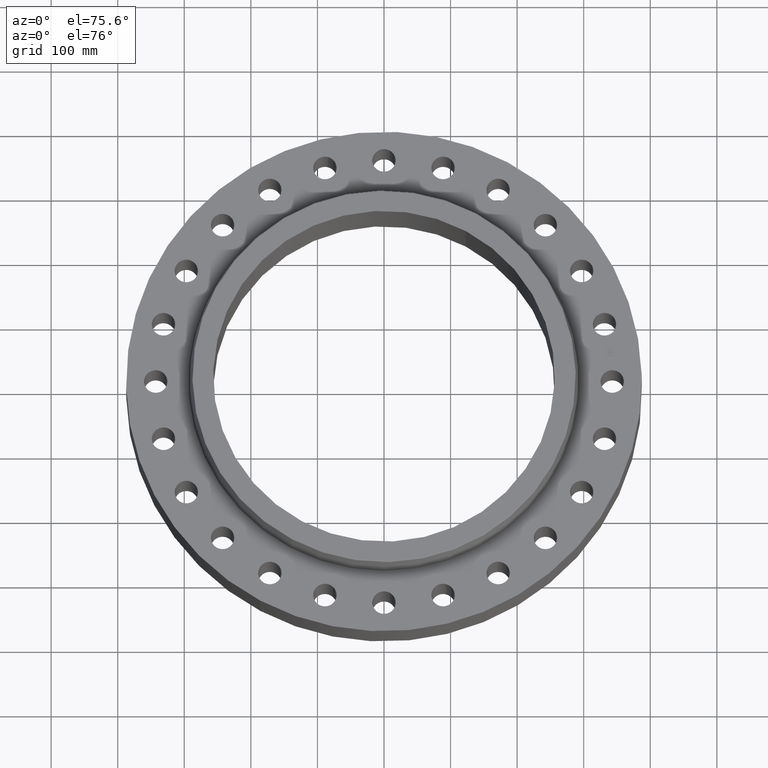
[diagram: clean part render]
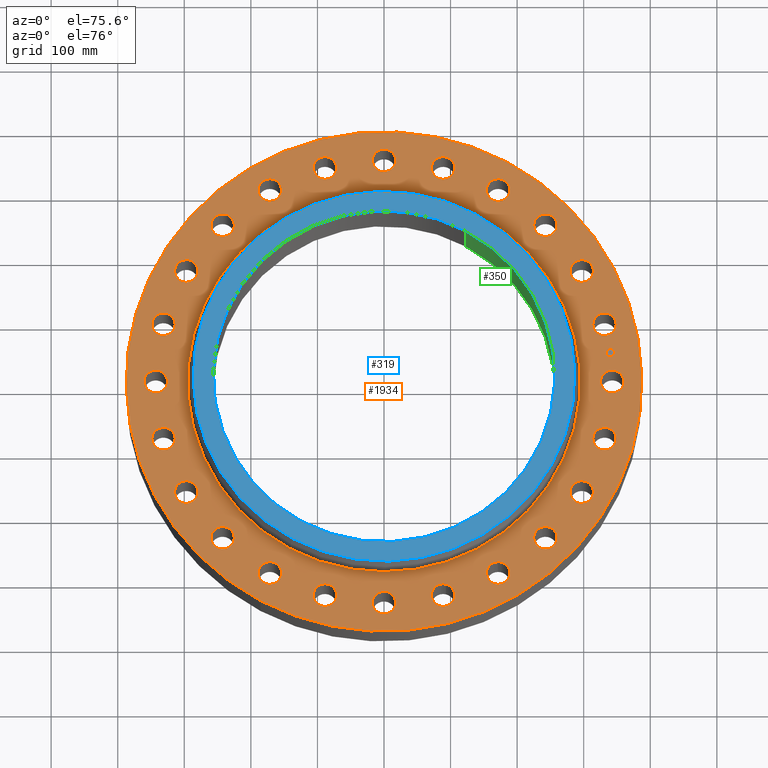
[diagram: same view with three faces highlighted in distinct colors, each labeled with its STEP entity id]
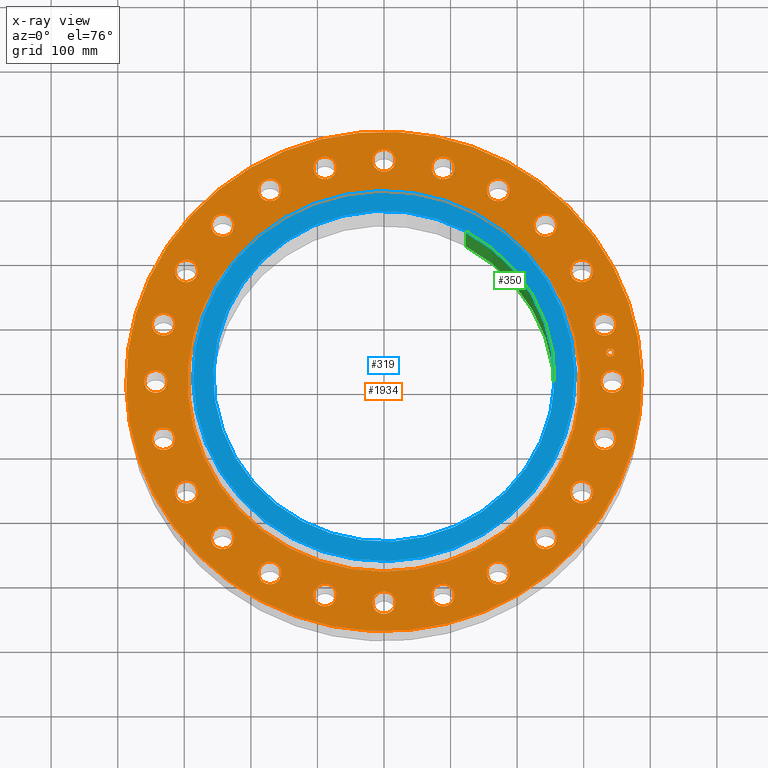
[diagram: x-ray of the same camera — body ghosted, the three highlighted faces saturated]
A machine part, auxiliary view with three faces highlighted in distinct colors.
The next image is the same camera in x-ray (body ghosted, the three faces saturated) — at least one of them is partly hidden behind the body in this view.
Their STEP definitions:

[orange] entity #1934 — the highlighted planar face has unit normal (0, 0, -1).
#65=AXIS2_PLACEMENT_3D('Circle Axis2P3D',#63,#64,$) ;
#82=AXIS2_PLACEMENT_3D('Circle Axis2P3D',#80,#81,$) ;
#115=AXIS2_PLACEMENT_3D('Circle Axis2P3D',#113,#114,$) ;
#139=AXIS2_PLACEMENT_3D('Circle Axis2P3D',#137,#138,$) ;
#156=AXIS2_PLACEMENT_3D('Circle Axis2P3D',#154,#155,$) ;
#191=AXIS2_PLACEMENT_3D('Circle Axis2P3D',#189,#190,$) ;
#839=AXIS2_PLACEMENT_3D('Circle Axis2P3D',#837,#838,$) ;
#851=AXIS2_PLACEMENT_3D('Circle Axis2P3D',#849,#850,$) ;
#882=AXIS2_PLACEMENT_3D('Circle Axis2P3D',#880,#881,$) ;
#894=AXIS2_PLACEMENT_3D('Circle Axis2P3D',#892,#893,$) ;
#925=AXIS2_PLACEMENT_3D('Circle Axis2P3D',#923,#924,$) ;
#937=AXIS2_PLACEMENT_3D('Circle Axis2P3D',#935,#936,$) ;
#968=AXIS2_PLACEMENT_3D('Circle Axis2P3D',#966,#967,$) ;
#980=AXIS2_PLACEMENT_3D('Circle Axis2P3D',#978,#979,$) ;
#1011=AXIS2_PLACEMENT_3D('Circle Axis2P3D',#1009,#1010,$) ;
#1023=AXIS2_PLACEMENT_3D('Circle Axis2P3D',#1021,#1022,$) ;
#1054=AXIS2_PLACEMENT_3D('Circle Axis2P3D',#1052,#1053,$) ;
#1066=AXIS2_PLACEMENT_3D('Circle Axis2P3D',#1064,#1065,$) ;
#1097=AXIS2_PLACEMENT_3D('Circle Axis2P3D',#1095,#1096,$) ;
#1109=AXIS2_PLACEMENT_3D('Circle Axis2P3D',#1107,#1108,$) ;
#1140=AXIS2_PLACEMENT_3D('Circle Axis2P3D',#1138,#1139,$) ;
#1152=AXIS2_PLACEMENT_3D('Circle Axis2P3D',#1150,#1151,$) ;
#1183=AXIS2_PLACEMENT_3D('Circle Axis2P3D',#1181,#1182,$) ;
#1195=AXIS2_PLACEMENT_3D('Circle Axis2P3D',#1193,#1194,$) ;
#1226=AXIS2_PLACEMENT_3D('Circle Axis2P3D',#1224,#1225,$) ;
#1238=AXIS2_PLACEMENT_3D('Circle Axis2P3D',#1236,#1237,$) ;
#1269=AXIS2_PLACEMENT_3D('Circle Axis2P3D',#1267,#1268,$) ;
#1281=AXIS2_PLACEMENT_3D('Circle Axis2P3D',#1279,#1280,$) ;
#1312=AXIS2_PLACEMENT_3D('Circle Axis2P3D',#1310,#1311,$) ;
#1324=AXIS2_PLACEMENT_3D('Circle Axis2P3D',#1322,#1323,$) ;
#1355=AXIS2_PLACEMENT_3D('Circle Axis2P3D',#1353,#1354,$) ;
#1367=AXIS2_PLACEMENT_3D('Circle Axis2P3D',#1365,#1366,$) ;
#1398=AXIS2_PLACEMENT_3D('Circle Axis2P3D',#1396,#1397,$) ;
#1410=AXIS2_PLACEMENT_3D('Circle Axis2P3D',#1408,#1409,$) ;
#1441=AXIS2_PLACEMENT_3D('Circle Axis2P3D',#1439,#1440,$) ;
#1453=AXIS2_PLACEMENT_3D('Circle Axis2P3D',#1451,#1452,$) ;
#1484=AXIS2_PLACEMENT_3D('Circle Axis2P3D',#1482,#1483,$) ;
#1496=AXIS2_PLACEMENT_3D('Circle Axis2P3D',#1494,#1495,$) ;
#1527=AXIS2_PLACEMENT_3D('Circle Axis2P3D',#1525,#1526,$) ;
#1539=AXIS2_PLACEMENT_3D('Circle Axis2P3D',#1537,#1538,$) ;
#1570=AXIS2_PLACEMENT_3D('Circle Axis2P3D',#1568,#1569,$) ;
#1582=AXIS2_PLACEMENT_3D('Circle Axis2P3D',#1580,#1581,$) ;
#1613=AXIS2_PLACEMENT_3D('Circle Axis2P3D',#1611,#1612,$) ;
#1625=AXIS2_PLACEMENT_3D('Circle Axis2P3D',#1623,#1624,$) ;
#1656=AXIS2_PLACEMENT_3D('Circle Axis2P3D',#1654,#1655,$) ;
#1668=AXIS2_PLACEMENT_3D('Circle Axis2P3D',#1666,#1667,$) ;
#1699=AXIS2_PLACEMENT_3D('Circle Axis2P3D',#1697,#1698,$) ;
#1711=AXIS2_PLACEMENT_3D('Circle Axis2P3D',#1709,#1710,$) ;
#1742=AXIS2_PLACEMENT_3D('Circle Axis2P3D',#1740,#1741,$) ;
#1754=AXIS2_PLACEMENT_3D('Circle Axis2P3D',#1752,#1753,$) ;
#1785=AXIS2_PLACEMENT_3D('Circle Axis2P3D',#1783,#1784,$) ;
#1797=AXIS2_PLACEMENT_3D('Circle Axis2P3D',#1795,#1796,$) ;
#1810=AXIS2_PLACEMENT_3D('Plane Axis2P3D',#1807,#1808,#1809) ;
#1918=AXIS2_PLACEMENT_3D('Circle Axis2P3D',#1916,#1917,$) ;
#1927=AXIS2_PLACEMENT_3D('Circle Axis2P3D',#1925,#1926,$) ;
#46=CARTESIAN_POINT('Vertex',(12.8944680323,0.330803621638,2.44000000001)) ;
#60=CARTESIAN_POINT('Vertex',(14.1055319678,-0.330803621638,2.44000000001)) ;
#63=CARTESIAN_POINT('Axis2P3D Location',(13.5000000001,0.,2.44000000001)) ;
#80=CARTESIAN_POINT('Axis2P3D Location',(13.5000000001,0.,2.44000000001)) ;
#110=CARTESIAN_POINT('Vertex',(-7.31123946374,-13.3831340689,2.44000000001)) ;
#113=CARTESIAN_POINT('Axis2P3D Location',(0.,0.,2.44000000001)) ;
#117=CARTESIAN_POINT('Vertex',(7.31123946374,13.3831340689,2.44000000001)) ;
#137=CARTESIAN_POINT('Axis2P3D Location',(0.,0.,2.44000000001)) ;
#154=CARTESIAN_POINT('Axis2P3D Location',(0.,0.,2.44000000001)) ;
#158=CARTESIAN_POINT('Vertex',(5.56629637384,10.1890371677,2.44000000001)) ;
#160=CARTESIAN_POINT('Vertex',(-5.56629637384,-10.1890371677,2.44000000001)) ;
#189=CARTESIAN_POINT('Axis2P3D Location',(0.,0.,2.44000000001)) ;
#827=CARTESIAN_POINT('Vertex',(-12.5407179662,3.01780214167,2.44000000001)) ;
#834=CARTESIAN_POINT('Vertex',(-13.5392793437,3.97031207613,2.44000000001)) ;
#837=CARTESIAN_POINT('Axis2P3D Location',(-13.039998655,3.4940571089,2.44000000001)) ;
#849=CARTESIAN_POINT('Axis2P3D Location',(-13.039998655,3.4940571089,2.44000000001)) ;
#870=CARTESIAN_POINT('Vertex',(11.3323386951,-6.16074967617,2.44000000001)) ;
#877=CARTESIAN_POINT('Vertex',(12.0503472072,-7.33925032388,2.44000000001)) ;
#880=CARTESIAN_POINT('Axis2P3D Location',(11.6913429511,-6.75000000003,2.44000000001)) ;
#892=CARTESIAN_POINT('Axis2P3D Location',(11.6913429511,-6.75000000003,2.44000000001)) ;
#913=CARTESIAN_POINT('Vertex',(-11.3323386951,6.16074967617,2.44000000001)) ;
#920=CARTESIAN_POINT('Vertex',(-12.0503472072,7.33925032388,2.44000000001)) ;
#923=CARTESIAN_POINT('Axis2P3D Location',(-11.6913429511,6.75000000003,2.44000000001)) ;
#935=CARTESIAN_POINT('Axis2P3D Location',(-11.6913429511,6.75000000003,2.44000000001)) ;
#956=CARTESIAN_POINT('Vertex',(9.35167926957,-8.88385230136,2.44000000001)) ;
#963=CARTESIAN_POINT('Vertex',(9.74020382255,-10.2080307907,2.44000000001)) ;
#966=CARTESIAN_POINT('Axis2P3D Location',(9.54594154606,-9.54594154606,2.44000000001)) ;
#978=CARTESIAN_POINT('Axis2P3D Location',(9.54594154606,-9.54594154606,2.44000000001)) ;
#999=CARTESIAN_POINT('Vertex',(-9.35167926957,8.88385230136,2.44000000001)) ;
#1006=CARTESIAN_POINT('Vertex',(-9.74020382255,10.2080307907,2.44000000001)) ;
#1009=CARTESIAN_POINT('Axis2P3D Location',(-9.54594154606,9.54594154606,2.44000000001)) ;
#1021=CARTESIAN_POINT('Axis2P3D Location',(-9.54594154606,9.54594154606,2.44000000001)) ;
#1042=CARTESIAN_POINT('Vertex',(6.73371835618,-11.0015350735,2.44000000001)) ;
#1049=CARTESIAN_POINT('Vertex',(6.76628164388,-12.3811508288,2.44000000001)) ;
#1052=CARTESIAN_POINT('Axis2P3D Location',(6.75000000003,-11.6913429511,2.44000000001)) ;
#1064=CARTESIAN_POINT('Axis2P3D Location',(6.75000000003,-11.6913429511,2.44000000001)) ;
#1085=CARTESIAN_POINT('Vertex',(-6.73371835618,11.0015350735,2.44000000001)) ;
#1092=CARTESIAN_POINT('Vertex',(-6.76628164388,12.3811508288,2.44000000001)) ;
#1095=CARTESIAN_POINT('Axis2P3D Location',(-6.75000000003,11.6913429511,2.44000000001)) ;
#1107=CARTESIAN_POINT('Axis2P3D Location',(-6.75000000003,11.6913429511,2.44000000001)) ;
#1128=CARTESIAN_POINT('Vertex',(3.65686566481,-12.3694814112,2.44000000001)) ;
#1135=CARTESIAN_POINT('Vertex',(3.33124855299,-13.7105158987,2.44000000001)) ;
#1138=CARTESIAN_POINT('Axis2P3D Location',(3.4940571089,-13.039998655,2.44000000001)) ;
#1150=CARTESIAN_POINT('Axis2P3D Location',(3.4940571089,-13.039998655,2.44000000001)) ;
#1171=CARTESIAN_POINT('Vertex',(-3.65686566481,12.3694814112,2.44000000001)) ;
#1178=CARTESIAN_POINT('Vertex',(-3.33124855299,13.7105158987,2.44000000001)) ;
#1181=CARTESIAN_POINT('Axis2P3D Location',(-3.4940571089,13.039998655,2.44000000001)) ;
#1193=CARTESIAN_POINT('Axis2P3D Location',(-3.4940571089,13.039998655,2.44000000001)) ;
#1214=CARTESIAN_POINT('Vertex',(0.330803621638,-12.8944680323,2.44000000001)) ;
#1221=CARTESIAN_POINT('Vertex',(-0.330803621638,-14.1055319678,2.44000000001)) ;
#1224=CARTESIAN_POINT('Axis2P3D Location',(-1.41129328698E-015,-13.5000000001,2.44000000001)) ;
#1236=CARTESIAN_POINT('Axis2P3D Location',(-1.41129328698E-015,-13.5000000001,2.44000000001)) ;
#1257=CARTESIAN_POINT('Vertex',(-0.330803621638,12.8944680323,2.44000000001)) ;
#1264=CARTESIAN_POINT('Vertex',(0.330803621638,14.1055319678,2.44000000001)) ;
#1267=CARTESIAN_POINT('Axis2P3D Location',(-2.47990976828E-015,13.5000000001,2.44000000001)) ;
#1279=CARTESIAN_POINT('Axis2P3D Location',(-2.47990976828E-015,13.5000000001,2.44000000001)) ;
#1300=CARTESIAN_POINT('Vertex',(-3.01780214167,-12.5407179662,2.44000000001)) ;
#1307=CARTESIAN_POINT('Vertex',(-3.97031207613,-13.5392793437,2.44000000001)) ;
#1310=CARTESIAN_POINT('Axis2P3D Location',(-3.4940571089,-13.039998655,2.44000000001)) ;
#1322=CARTESIAN_POINT('Axis2P3D Location',(-3.4940571089,-13.039998655,2.44000000001)) ;
#1343=CARTESIAN_POINT('Vertex',(3.01780214167,12.5407179662,2.44000000001)) ;
#1350=CARTESIAN_POINT('Vertex',(3.97031207613,13.5392793437,2.44000000001)) ;
#1353=CARTESIAN_POINT('Axis2P3D Location',(3.4940571089,13.039998655,2.44000000001)) ;
#1365=CARTESIAN_POINT('Axis2P3D Location',(3.4940571089,13.039998655,2.44000000001)) ;
#1386=CARTESIAN_POINT('Vertex',(-6.16074967617,-11.3323386951,2.44000000001)) ;
#1393=CARTESIAN_POINT('Vertex',(-7.33925032388,-12.0503472072,2.44000000001)) ;
#1396=CARTESIAN_POINT('Axis2P3D Location',(-6.75000000003,-11.6913429511,2.44000000001)) ;
#1408=CARTESIAN_POINT('Axis2P3D Location',(-6.75000000003,-11.6913429511,2.44000000001)) ;
#1429=CARTESIAN_POINT('Vertex',(6.16074967617,11.3323386951,2.44000000001)) ;
#1436=CARTESIAN_POINT('Vertex',(7.33925032388,12.0503472072,2.44000000001)) ;
#1439=CARTESIAN_POINT('Axis2P3D Location',(6.75000000003,11.6913429511,2.44000000001)) ;
#1451=CARTESIAN_POINT('Axis2P3D Location',(6.75000000003,11.6913429511,2.44000000001)) ;
#1472=CARTESIAN_POINT('Vertex',(-8.88385230136,-9.35167926957,2.44000000001)) ;
#1479=CARTESIAN_POINT('Vertex',(-10.2080307907,-9.74020382255,2.44000000001)) ;
#1482=CARTESIAN_POINT('Axis2P3D Location',(-9.54594154606,-9.54594154606,2.44000000001)) ;
#1494=CARTESIAN_POINT('Axis2P3D Location',(-9.54594154606,-9.54594154606,2.44000000001)) ;
#1515=CARTESIAN_POINT('Vertex',(8.88385230136,9.35167926957,2.44000000001)) ;
#1522=CARTESIAN_POINT('Vertex',(10.2080307907,9.74020382255,2.44000000001)) ;
#1525=CARTESIAN_POINT('Axis2P3D Location',(9.54594154606,9.54594154606,2.44000000001)) ;
#1537=CARTESIAN_POINT('Axis2P3D Location',(9.54594154606,9.54594154606,2.44000000001)) ;
#1558=CARTESIAN_POINT('Vertex',(-11.0015350735,-6.73371835618,2.44000000001)) ;
#1565=CARTESIAN_POINT('Vertex',(-12.3811508288,-6.76628164388,2.44000000001)) ;
#1568=CARTESIAN_POINT('Axis2P3D Location',(-11.6913429511,-6.75000000003,2.44000000001)) ;
#1580=CARTESIAN_POINT('Axis2P3D Location',(-11.6913429511,-6.75000000003,2.44000000001)) ;
#1601=CARTESIAN_POINT('Vertex',(11.0015350735,6.73371835618,2.44000000001)) ;
#1608=CARTESIAN_POINT('Vertex',(12.3811508288,6.76628164388,2.44000000001)) ;
#1611=CARTESIAN_POINT('Axis2P3D Location',(11.6913429511,6.75000000003,2.44000000001)) ;
#1623=CARTESIAN_POINT('Axis2P3D Location',(11.6913429511,6.75000000003,2.44000000001)) ;
#1644=CARTESIAN_POINT('Vertex',(-12.3694814112,-3.65686566481,2.44000000001)) ;
#1651=CARTESIAN_POINT('Vertex',(-13.7105158987,-3.33124855299,2.44000000001)) ;
#1654=CARTESIAN_POINT('Axis2P3D Location',(-13.039998655,-3.4940571089,2.44000000001)) ;
#1666=CARTESIAN_POINT('Axis2P3D Location',(-13.039998655,-3.4940571089,2.44000000001)) ;
#1687=CARTESIAN_POINT('Vertex',(12.3694814112,3.65686566481,2.44000000001)) ;
#1694=CARTESIAN_POINT('Vertex',(13.7105158987,3.33124855299,2.44000000001)) ;
#1697=CARTESIAN_POINT('Axis2P3D Location',(13.039998655,3.4940571089,2.44000000001)) ;
#1709=CARTESIAN_POINT('Axis2P3D Location',(13.039998655,3.4940571089,2.44000000001)) ;
#1730=CARTESIAN_POINT('Vertex',(-12.8944680323,-0.330803621638,2.44000000001)) ;
#1737=CARTESIAN_POINT('Vertex',(-14.1055319678,0.330803621638,2.44000000001)) ;
#1740=CARTESIAN_POINT('Axis2P3D Location',(-13.5000000001,-1.65327317886E-015,2.44000000001)) ;
#1752=CARTESIAN_POINT('Axis2P3D Location',(-13.5000000001,-1.65327317886E-015,2.44000000001)) ;
#1773=CARTESIAN_POINT('Vertex',(12.5407179662,-3.01780214167,2.44000000001)) ;
#1780=CARTESIAN_POINT('Vertex',(13.5392793437,-3.97031207613,2.44000000001)) ;
#1783=CARTESIAN_POINT('Axis2P3D Location',(13.039998655,-3.4940571089,2.44000000001)) ;
#1795=CARTESIAN_POINT('Axis2P3D Location',(13.039998655,-3.4940571089,2.44000000001)) ;
#1807=CARTESIAN_POINT('Axis2P3D Location',(0.,15.2500000001,2.44000000001)) ;
#1916=CARTESIAN_POINT('Axis2P3D Location',(13.3845056286,1.76210359498,2.44000000001)) ;
#1920=CARTESIAN_POINT('Vertex',(13.352200396,2.00748619817,2.44000000001)) ;
#1922=CARTESIAN_POINT('Vertex',(13.4168108612,1.51672099179,2.44000000001)) ;
#1925=CARTESIAN_POINT('Axis2P3D Location',(13.3845056286,1.76210359498,2.44000000001)) ;
#64=DIRECTION('Axis2P3D Direction',(0.,-0.,-0.0393700787402)) ;
#81=DIRECTION('Axis2P3D Direction',(0.,-0.,-0.0393700787402)) ;
#114=DIRECTION('Axis2P3D Direction',(0.,0.,-0.0393700787402)) ;
#138=DIRECTION('Axis2P3D Direction',(0.,0.,-0.0393700787402)) ;
#155=DIRECTION('Axis2P3D Direction',(0.,0.,-0.0393700787402)) ;
#190=DIRECTION('Axis2P3D Direction',(0.,0.,-0.0393700787402)) ;
#838=DIRECTION('Axis2P3D Direction',(0.,0.,-0.0393700787402)) ;
#850=DIRECTION('Axis2P3D Direction',(0.,0.,-0.0393700787402)) ;
#881=DIRECTION('Axis2P3D Direction',(0.,-0.,-0.0393700787402)) ;
#893=DIRECTION('Axis2P3D Direction',(0.,-0.,-0.0393700787402)) ;
#924=DIRECTION('Axis2P3D Direction',(0.,0.,-0.0393700787402)) ;
#936=DIRECTION('Axis2P3D Direction',(0.,0.,-0.0393700787402)) ;
#967=DIRECTION('Axis2P3D Direction',(0.,-0.,-0.0393700787402)) ;
#979=DIRECTION('Axis2P3D Direction',(0.,-0.,-0.0393700787402)) ;
#1010=DIRECTION('Axis2P3D Direction',(0.,0.,-0.0393700787402)) ;
#1022=DIRECTION('Axis2P3D Direction',(0.,0.,-0.0393700787402)) ;
#1053=DIRECTION('Axis2P3D Direction',(0.,-0.,-0.0393700787402)) ;
#1065=DIRECTION('Axis2P3D Direction',(0.,-0.,-0.0393700787402)) ;
#1096=DIRECTION('Axis2P3D Direction',(0.,0.,-0.0393700787402)) ;
#1108=DIRECTION('Axis2P3D Direction',(0.,0.,-0.0393700787402)) ;
#1139=DIRECTION('Axis2P3D Direction',(0.,-0.,-0.0393700787402)) ;
#1151=DIRECTION('Axis2P3D Direction',(0.,-0.,-0.0393700787402)) ;
#1182=DIRECTION('Axis2P3D Direction',(0.,0.,-0.0393700787402)) ;
#1194=DIRECTION('Axis2P3D Direction',(0.,0.,-0.0393700787402)) ;
#1225=DIRECTION('Axis2P3D Direction',(0.,-0.,-0.0393700787402)) ;
#1237=DIRECTION('Axis2P3D Direction',(0.,-0.,-0.0393700787402)) ;
#1268=DIRECTION('Axis2P3D Direction',(0.,0.,-0.0393700787402)) ;
#1280=DIRECTION('Axis2P3D Direction',(0.,0.,-0.0393700787402)) ;
#1311=DIRECTION('Axis2P3D Direction',(-0.,0.,-0.0393700787402)) ;
#1323=DIRECTION('Axis2P3D Direction',(-0.,0.,-0.0393700787402)) ;
#1354=DIRECTION('Axis2P3D Direction',(0.,0.,-0.0393700787402)) ;
#1366=DIRECTION('Axis2P3D Direction',(0.,0.,-0.0393700787402)) ;
#1397=DIRECTION('Axis2P3D Direction',(-0.,0.,-0.0393700787402)) ;
#1409=DIRECTION('Axis2P3D Direction',(-0.,0.,-0.0393700787402)) ;
#1440=DIRECTION('Axis2P3D Direction',(0.,0.,-0.0393700787402)) ;
#1452=DIRECTION('Axis2P3D Direction',(0.,0.,-0.0393700787402)) ;
#1483=DIRECTION('Axis2P3D Direction',(-0.,0.,-0.0393700787402)) ;
#1495=DIRECTION('Axis2P3D Direction',(-0.,0.,-0.0393700787402)) ;
#1526=DIRECTION('Axis2P3D Direction',(0.,0.,-0.0393700787402)) ;
#1538=DIRECTION('Axis2P3D Direction',(0.,0.,-0.0393700787402)) ;
#1569=DIRECTION('Axis2P3D Direction',(-0.,0.,-0.0393700787402)) ;
#1581=DIRECTION('Axis2P3D Direction',(-0.,0.,-0.0393700787402)) ;
#1612=DIRECTION('Axis2P3D Direction',(0.,0.,-0.0393700787402)) ;
#1624=DIRECTION('Axis2P3D Direction',(0.,0.,-0.0393700787402)) ;
#1655=DIRECTION('Axis2P3D Direction',(-0.,0.,-0.0393700787402)) ;
#1667=DIRECTION('Axis2P3D Direction',(-0.,0.,-0.0393700787402)) ;
#1698=DIRECTION('Axis2P3D Direction',(0.,0.,-0.0393700787402)) ;
#1710=DIRECTION('Axis2P3D Direction',(0.,0.,-0.0393700787402)) ;
#1741=DIRECTION('Axis2P3D Direction',(-0.,0.,-0.0393700787402)) ;
#1753=DIRECTION('Axis2P3D Direction',(-0.,0.,-0.0393700787402)) ;
#1784=DIRECTION('Axis2P3D Direction',(0.,-0.,-0.0393700787402)) ;
#1796=DIRECTION('Axis2P3D Direction',(0.,-0.,-0.0393700787402)) ;
#1808=DIRECTION('Axis2P3D Direction',(0.,0.,-0.0393700787402)) ;
#1809=DIRECTION('Axis2P3D XDirection',(0.0393700787402,0.,0.)) ;
#1917=DIRECTION('Axis2P3D Direction',(0.,0.,-0.0393700787402)) ;
#1926=DIRECTION('Axis2P3D Direction',(0.,0.,-0.0393700787402)) ;
#1813=ORIENTED_EDGE('',*,*,#141,.F.) ;
#1814=ORIENTED_EDGE('',*,*,#119,.F.) ;
#1817=ORIENTED_EDGE('',*,*,#67,.T.) ;
#1818=ORIENTED_EDGE('',*,*,#84,.T.) ;
#1821=ORIENTED_EDGE('',*,*,#193,.T.) ;
#1822=ORIENTED_EDGE('',*,*,#162,.T.) ;
#1825=ORIENTED_EDGE('',*,*,#1799,.T.) ;
#1826=ORIENTED_EDGE('',*,*,#1787,.T.) ;
#1829=ORIENTED_EDGE('',*,*,#896,.T.) ;
#1830=ORIENTED_EDGE('',*,*,#884,.T.) ;
#1833=ORIENTED_EDGE('',*,*,#982,.T.) ;
#1834=ORIENTED_EDGE('',*,*,#970,.T.) ;
#1837=ORIENTED_EDGE('',*,*,#1068,.T.) ;
#1838=ORIENTED_EDGE('',*,*,#1056,.T.) ;
#1841=ORIENTED_EDGE('',*,*,#1154,.T.) ;
#1842=ORIENTED_EDGE('',*,*,#1142,.T.) ;
#1845=ORIENTED_EDGE('',*,*,#1240,.T.) ;
#1846=ORIENTED_EDGE('',*,*,#1228,.T.) ;
#1849=ORIENTED_EDGE('',*,*,#1326,.T.) ;
#1850=ORIENTED_EDGE('',*,*,#1314,.T.) ;
#1853=ORIENTED_EDGE('',*,*,#1412,.T.) ;
#1854=ORIENTED_EDGE('',*,*,#1400,.T.) ;
#1857=ORIENTED_EDGE('',*,*,#1498,.T.) ;
#1858=ORIENTED_EDGE('',*,*,#1486,.T.) ;
#1861=ORIENTED_EDGE('',*,*,#1584,.T.) ;
#1862=ORIENTED_EDGE('',*,*,#1572,.T.) ;
#1865=ORIENTED_EDGE('',*,*,#1670,.T.) ;
#1866=ORIENTED_EDGE('',*,*,#1658,.T.) ;
#1869=ORIENTED_EDGE('',*,*,#1756,.T.) ;
#1870=ORIENTED_EDGE('',*,*,#1744,.T.) ;
#1873=ORIENTED_EDGE('',*,*,#853,.T.) ;
#1874=ORIENTED_EDGE('',*,*,#841,.T.) ;
#1877=ORIENTED_EDGE('',*,*,#939,.T.) ;
#1878=ORIENTED_EDGE('',*,*,#927,.T.) ;
#1881=ORIENTED_EDGE('',*,*,#1025,.T.) ;
#1882=ORIENTED_EDGE('',*,*,#1013,.T.) ;
#1885=ORIENTED_EDGE('',*,*,#1111,.T.) ;
#1886=ORIENTED_EDGE('',*,*,#1099,.T.) ;
#1889=ORIENTED_EDGE('',*,*,#1197,.T.) ;
#1890=ORIENTED_EDGE('',*,*,#1185,.T.) ;
#1893=ORIENTED_EDGE('',*,*,#1283,.T.) ;
#1894=ORIENTED_EDGE('',*,*,#1271,.T.) ;
#1897=ORIENTED_EDGE('',*,*,#1369,.T.) ;
#1898=ORIENTED_EDGE('',*,*,#1357,.T.) ;
#1901=ORIENTED_EDGE('',*,*,#1455,.T.) ;
#1902=ORIENTED_EDGE('',*,*,#1443,.T.) ;
#1905=ORIENTED_EDGE('',*,*,#1541,.T.) ;
#1906=ORIENTED_EDGE('',*,*,#1529,.T.) ;
#1909=ORIENTED_EDGE('',*,*,#1627,.T.) ;
#1910=ORIENTED_EDGE('',*,*,#1615,.T.) ;
#1913=ORIENTED_EDGE('',*,*,#1713,.T.) ;
#1914=ORIENTED_EDGE('',*,*,#1701,.T.) ;
#1931=ORIENTED_EDGE('',*,*,#1924,.T.) ;
#1932=ORIENTED_EDGE('',*,*,#1929,.T.) ;
#1819=FACE_BOUND('',#1816,.T.) ;
#1823=FACE_BOUND('',#1820,.T.) ;
#1827=FACE_BOUND('',#1824,.T.) ;
#1831=FACE_BOUND('',#1828,.T.) ;
#1835=FACE_BOUND('',#1832,.T.) ;
#1839=FACE_BOUND('',#1836,.T.) ;
#1843=FACE_BOUND('',#1840,.T.) ;
#1847=FACE_BOUND('',#1844,.T.) ;
#1851=FACE_BOUND('',#1848,.T.) ;
#1855=FACE_BOUND('',#1852,.T.) ;
#1859=FACE_BOUND('',#1856,.T.) ;
#1863=FACE_BOUND('',#1860,.T.) ;
#1867=FACE_BOUND('',#1864,.T.) ;
#1871=FACE_BOUND('',#1868,.T.) ;
#1875=FACE_BOUND('',#1872,.T.) ;
#1879=FACE_BOUND('',#1876,.T.) ;
#1883=FACE_BOUND('',#1880,.T.) ;
#1887=FACE_BOUND('',#1884,.T.) ;
#1891=FACE_BOUND('',#1888,.T.) ;
#1895=FACE_BOUND('',#1892,.T.) ;
#1899=FACE_BOUND('',#1896,.T.) ;
#1903=FACE_BOUND('',#1900,.T.) ;
#1907=FACE_BOUND('',#1904,.T.) ;
#1911=FACE_BOUND('',#1908,.T.) ;
#1915=FACE_BOUND('',#1912,.T.) ;
#1933=FACE_BOUND('',#1930,.T.) ;
#1934=ADVANCED_FACE('PartBody',(#1815,#1819,#1823,#1827,#1831,#1835,#1839,#1843,#1847,#1851,#1855,#1859,#1863,#1867,#1871,#1875,#1879,#1883,#1887,#1891,#1895,#1899,#1903,#1907,#1911,#1915,#1933),#1811,.F.) ;
#66=CIRCLE('generated circle',#65,0.690000000003) ;
#83=CIRCLE('generated circle',#82,0.690000000003) ;
#116=CIRCLE('generated circle',#115,15.2500000001) ;
#140=CIRCLE('generated circle',#139,15.2500000001) ;
#157=CIRCLE('generated circle',#156,11.6103459779) ;
#192=CIRCLE('generated circle',#191,11.6103459779) ;
#840=CIRCLE('generated circle',#839,0.690000000003) ;
#852=CIRCLE('generated circle',#851,0.690000000003) ;
#883=CIRCLE('generated circle',#882,0.690000000003) ;
#895=CIRCLE('generated circle',#894,0.690000000003) ;
#926=CIRCLE('generated circle',#925,0.690000000003) ;
#938=CIRCLE('generated circle',#937,0.690000000003) ;
#969=CIRCLE('generated circle',#968,0.690000000003) ;
#981=CIRCLE('generated circle',#980,0.690000000003) ;
#1012=CIRCLE('generated circle',#1011,0.690000000003) ;
#1024=CIRCLE('generated circle',#1023,0.690000000003) ;
#1055=CIRCLE('generated circle',#1054,0.690000000003) ;
#1067=CIRCLE('generated circle',#1066,0.690000000003) ;
#1098=CIRCLE('generated circle',#1097,0.690000000003) ;
#1110=CIRCLE('generated circle',#1109,0.690000000003) ;
#1141=CIRCLE('generated circle',#1140,0.690000000003) ;
#1153=CIRCLE('generated circle',#1152,0.690000000003) ;
#1184=CIRCLE('generated circle',#1183,0.690000000003) ;
#1196=CIRCLE('generated circle',#1195,0.690000000003) ;
#1227=CIRCLE('generated circle',#1226,0.690000000003) ;
#1239=CIRCLE('generated circle',#1238,0.690000000003) ;
#1270=CIRCLE('generated circle',#1269,0.690000000003) ;
#1282=CIRCLE('generated circle',#1281,0.690000000003) ;
#1313=CIRCLE('generated circle',#1312,0.690000000003) ;
#1325=CIRCLE('generated circle',#1324,0.690000000003) ;
#1356=CIRCLE('generated circle',#1355,0.690000000003) ;
#1368=CIRCLE('generated circle',#1367,0.690000000003) ;
#1399=CIRCLE('generated circle',#1398,0.690000000003) ;
#1411=CIRCLE('generated circle',#1410,0.690000000003) ;
#1442=CIRCLE('generated circle',#1441,0.690000000003) ;
#1454=CIRCLE('generated circle',#1453,0.690000000003) ;
#1485=CIRCLE('generated circle',#1484,0.690000000003) ;
#1497=CIRCLE('generated circle',#1496,0.690000000003) ;
#1528=CIRCLE('generated circle',#1527,0.690000000003) ;
#1540=CIRCLE('generated circle',#1539,0.690000000003) ;
#1571=CIRCLE('generated circle',#1570,0.690000000003) ;
#1583=CIRCLE('generated circle',#1582,0.690000000003) ;
#1614=CIRCLE('generated circle',#1613,0.690000000003) ;
#1626=CIRCLE('generated circle',#1625,0.690000000003) ;
#1657=CIRCLE('generated circle',#1656,0.690000000003) ;
#1669=CIRCLE('generated circle',#1668,0.690000000003) ;
#1700=CIRCLE('generated circle',#1699,0.690000000003) ;
#1712=CIRCLE('generated circle',#1711,0.690000000003) ;
#1743=CIRCLE('generated circle',#1742,0.690000000003) ;
#1755=CIRCLE('generated circle',#1754,0.690000000003) ;
#1786=CIRCLE('generated circle',#1785,0.690000000003) ;
#1798=CIRCLE('generated circle',#1797,0.690000000003) ;
#1919=CIRCLE('generated circle',#1918,0.247500000001) ;
#1928=CIRCLE('generated circle',#1927,0.247500000001) ;
#67=EDGE_CURVE('',#47,#61,#66,.T.) ;
#84=EDGE_CURVE('',#61,#47,#83,.T.) ;
#119=EDGE_CURVE('',#111,#118,#116,.T.) ;
#141=EDGE_CURVE('',#118,#111,#140,.T.) ;
#162=EDGE_CURVE('',#159,#161,#157,.T.) ;
#193=EDGE_CURVE('',#161,#159,#192,.T.) ;
#841=EDGE_CURVE('',#828,#835,#840,.T.) ;
#853=EDGE_CURVE('',#835,#828,#852,.T.) ;
#884=EDGE_CURVE('',#871,#878,#883,.T.) ;
#896=EDGE_CURVE('',#878,#871,#895,.T.) ;
#927=EDGE_CURVE('',#914,#921,#926,.T.) ;
#939=EDGE_CURVE('',#921,#914,#938,.T.) ;
#970=EDGE_CURVE('',#957,#964,#969,.T.) ;
#982=EDGE_CURVE('',#964,#957,#981,.T.) ;
#1013=EDGE_CURVE('',#1000,#1007,#1012,.T.) ;
#1025=EDGE_CURVE('',#1007,#1000,#1024,.T.) ;
#1056=EDGE_CURVE('',#1043,#1050,#1055,.T.) ;
#1068=EDGE_CURVE('',#1050,#1043,#1067,.T.) ;
#1099=EDGE_CURVE('',#1086,#1093,#1098,.T.) ;
#1111=EDGE_CURVE('',#1093,#1086,#1110,.T.) ;
#1142=EDGE_CURVE('',#1129,#1136,#1141,.T.) ;
#1154=EDGE_CURVE('',#1136,#1129,#1153,.T.) ;
#1185=EDGE_CURVE('',#1172,#1179,#1184,.T.) ;
#1197=EDGE_CURVE('',#1179,#1172,#1196,.T.) ;
#1228=EDGE_CURVE('',#1215,#1222,#1227,.T.) ;
#1240=EDGE_CURVE('',#1222,#1215,#1239,.T.) ;
#1271=EDGE_CURVE('',#1258,#1265,#1270,.T.) ;
#1283=EDGE_CURVE('',#1265,#1258,#1282,.T.) ;
#1314=EDGE_CURVE('',#1301,#1308,#1313,.T.) ;
#1326=EDGE_CURVE('',#1308,#1301,#1325,.T.) ;
#1357=EDGE_CURVE('',#1344,#1351,#1356,.T.) ;
#1369=EDGE_CURVE('',#1351,#1344,#1368,.T.) ;
#1400=EDGE_CURVE('',#1387,#1394,#1399,.T.) ;
#1412=EDGE_CURVE('',#1394,#1387,#1411,.T.) ;
#1443=EDGE_CURVE('',#1430,#1437,#1442,.T.) ;
#1455=EDGE_CURVE('',#1437,#1430,#1454,.T.) ;
#1486=EDGE_CURVE('',#1473,#1480,#1485,.T.) ;
#1498=EDGE_CURVE('',#1480,#1473,#1497,.T.) ;
#1529=EDGE_CURVE('',#1516,#1523,#1528,.T.) ;
#1541=EDGE_CURVE('',#1523,#1516,#1540,.T.) ;
#1572=EDGE_CURVE('',#1559,#1566,#1571,.T.) ;
#1584=EDGE_CURVE('',#1566,#1559,#1583,.T.) ;
#1615=EDGE_CURVE('',#1602,#1609,#1614,.T.) ;
#1627=EDGE_CURVE('',#1609,#1602,#1626,.T.) ;
#1658=EDGE_CURVE('',#1645,#1652,#1657,.T.) ;
#1670=EDGE_CURVE('',#1652,#1645,#1669,.T.) ;
#1701=EDGE_CURVE('',#1688,#1695,#1700,.T.) ;
#1713=EDGE_CURVE('',#1695,#1688,#1712,.T.) ;
#1744=EDGE_CURVE('',#1731,#1738,#1743,.T.) ;
#1756=EDGE_CURVE('',#1738,#1731,#1755,.T.) ;
#1787=EDGE_CURVE('',#1774,#1781,#1786,.T.) ;
#1799=EDGE_CURVE('',#1781,#1774,#1798,.T.) ;
#1924=EDGE_CURVE('',#1921,#1923,#1919,.T.) ;
#1929=EDGE_CURVE('',#1923,#1921,#1928,.T.) ;
#1812=EDGE_LOOP('',(#1813,#1814)) ;
#1816=EDGE_LOOP('',(#1817,#1818)) ;
#1820=EDGE_LOOP('',(#1821,#1822)) ;
#1824=EDGE_LOOP('',(#1825,#1826)) ;
#1828=EDGE_LOOP('',(#1829,#1830)) ;
#1832=EDGE_LOOP('',(#1833,#1834)) ;
#1836=EDGE_LOOP('',(#1837,#1838)) ;
#1840=EDGE_LOOP('',(#1841,#1842)) ;
#1844=EDGE_LOOP('',(#1845,#1846)) ;
#1848=EDGE_LOOP('',(#1849,#1850)) ;
#1852=EDGE_LOOP('',(#1853,#1854)) ;
#1856=EDGE_LOOP('',(#1857,#1858)) ;
#1860=EDGE_LOOP('',(#1861,#1862)) ;
#1864=EDGE_LOOP('',(#1865,#1866)) ;
#1868=EDGE_LOOP('',(#1869,#1870)) ;
#1872=EDGE_LOOP('',(#1873,#1874)) ;
#1876=EDGE_LOOP('',(#1877,#1878)) ;
#1880=EDGE_LOOP('',(#1881,#1882)) ;
#1884=EDGE_LOOP('',(#1885,#1886)) ;
#1888=EDGE_LOOP('',(#1889,#1890)) ;
#1892=EDGE_LOOP('',(#1893,#1894)) ;
#1896=EDGE_LOOP('',(#1897,#1898)) ;
#1900=EDGE_LOOP('',(#1901,#1902)) ;
#1904=EDGE_LOOP('',(#1905,#1906)) ;
#1908=EDGE_LOOP('',(#1909,#1910)) ;
#1912=EDGE_LOOP('',(#1913,#1914)) ;
#1930=EDGE_LOOP('',(#1931,#1932)) ;
#1815=FACE_OUTER_BOUND('',#1812,.T.) ;
#1811=PLANE('',#1810) ;
#47=VERTEX_POINT('',#46) ;
#61=VERTEX_POINT('',#60) ;
#111=VERTEX_POINT('',#110) ;
#118=VERTEX_POINT('',#117) ;
#159=VERTEX_POINT('',#158) ;
#161=VERTEX_POINT('',#160) ;
#828=VERTEX_POINT('',#827) ;
#835=VERTEX_POINT('',#834) ;
#871=VERTEX_POINT('',#870) ;
#878=VERTEX_POINT('',#877) ;
#914=VERTEX_POINT('',#913) ;
#921=VERTEX_POINT('',#920) ;
#957=VERTEX_POINT('',#956) ;
#964=VERTEX_POINT('',#963) ;
#1000=VERTEX_POINT('',#999) ;
#1007=VERTEX_POINT('',#1006) ;
#1043=VERTEX_POINT('',#1042) ;
#1050=VERTEX_POINT('',#1049) ;
#1086=VERTEX_POINT('',#1085) ;
#1093=VERTEX_POINT('',#1092) ;
#1129=VERTEX_POINT('',#1128) ;
#1136=VERTEX_POINT('',#1135) ;
#1172=VERTEX_POINT('',#1171) ;
#1179=VERTEX_POINT('',#1178) ;
#1215=VERTEX_POINT('',#1214) ;
#1222=VERTEX_POINT('',#1221) ;
#1258=VERTEX_POINT('',#1257) ;
#1265=VERTEX_POINT('',#1264) ;
#1301=VERTEX_POINT('',#1300) ;
#1308=VERTEX_POINT('',#1307) ;
#1344=VERTEX_POINT('',#1343) ;
#1351=VERTEX_POINT('',#1350) ;
#1387=VERTEX_POINT('',#1386) ;
#1394=VERTEX_POINT('',#1393) ;
#1430=VERTEX_POINT('',#1429) ;
#1437=VERTEX_POINT('',#1436) ;
#1473=VERTEX_POINT('',#1472) ;
#1480=VERTEX_POINT('',#1479) ;
#1516=VERTEX_POINT('',#1515) ;
#1523=VERTEX_POINT('',#1522) ;
#1559=VERTEX_POINT('',#1558) ;
#1566=VERTEX_POINT('',#1565) ;
#1602=VERTEX_POINT('',#1601) ;
#1609=VERTEX_POINT('',#1608) ;
#1645=VERTEX_POINT('',#1644) ;
#1652=VERTEX_POINT('',#1651) ;
#1688=VERTEX_POINT('',#1687) ;
#1695=VERTEX_POINT('',#1694) ;
#1731=VERTEX_POINT('',#1730) ;
#1738=VERTEX_POINT('',#1737) ;
#1774=VERTEX_POINT('',#1773) ;
#1781=VERTEX_POINT('',#1780) ;
#1921=VERTEX_POINT('',#1920) ;
#1923=VERTEX_POINT('',#1922) ;

[blue] entity #319 — the highlighted planar face has unit normal (0, 0, -1).
#263=AXIS2_PLACEMENT_3D('Circle Axis2P3D',#261,#262,$) ;
#282=AXIS2_PLACEMENT_3D('Circle Axis2P3D',#280,#281,$) ;
#295=AXIS2_PLACEMENT_3D('Plane Axis2P3D',#292,#293,#294) ;
#303=AXIS2_PLACEMENT_3D('Circle Axis2P3D',#301,#302,$) ;
#312=AXIS2_PLACEMENT_3D('Circle Axis2P3D',#310,#311,$) ;
#258=CARTESIAN_POINT('Vertex',(5.41235250661,9.90724480893,3.69000000001)) ;
#261=CARTESIAN_POINT('Axis2P3D Location',(0.,0.,3.69000000001)) ;
#265=CARTESIAN_POINT('Vertex',(-5.41235250661,-9.90724480893,3.69000000001)) ;
#280=CARTESIAN_POINT('Axis2P3D Location',(0.,0.,3.69000000001)) ;
#292=CARTESIAN_POINT('Axis2P3D Location',(0.,11.2892452963,3.69000000001)) ;
#301=CARTESIAN_POINT('Axis2P3D Location',(0.,0.,3.69000000001)) ;
#305=CARTESIAN_POINT('Vertex',(-4.84219793992,-8.86358387513,3.69000000001)) ;
#307=CARTESIAN_POINT('Vertex',(4.84219793992,8.86358387513,3.69000000001)) ;
#310=CARTESIAN_POINT('Axis2P3D Location',(0.,0.,3.69000000001)) ;
#262=DIRECTION('Axis2P3D Direction',(0.,0.,-0.0393700787402)) ;
#281=DIRECTION('Axis2P3D Direction',(0.,0.,-0.0393700787402)) ;
#293=DIRECTION('Axis2P3D Direction',(0.,0.,-0.0393700787402)) ;
#294=DIRECTION('Axis2P3D XDirection',(0.0393700787402,0.,0.)) ;
#302=DIRECTION('Axis2P3D Direction',(0.,0.,-0.0393700787402)) ;
#311=DIRECTION('Axis2P3D Direction',(0.,0.,-0.0393700787402)) ;
#298=ORIENTED_EDGE('',*,*,#267,.F.) ;
#299=ORIENTED_EDGE('',*,*,#284,.F.) ;
#316=ORIENTED_EDGE('',*,*,#309,.T.) ;
#317=ORIENTED_EDGE('',*,*,#314,.T.) ;
#318=FACE_BOUND('',#315,.T.) ;
#319=ADVANCED_FACE('PartBody',(#300,#318),#296,.F.) ;
#264=CIRCLE('generated circle',#263,11.2892452963) ;
#283=CIRCLE('generated circle',#282,11.2892452963) ;
#304=CIRCLE('generated circle',#303,10.1) ;
#313=CIRCLE('generated circle',#312,10.1) ;
#267=EDGE_CURVE('',#259,#266,#264,.T.) ;
#284=EDGE_CURVE('',#266,#259,#283,.T.) ;
#309=EDGE_CURVE('',#306,#308,#304,.T.) ;
#314=EDGE_CURVE('',#308,#306,#313,.T.) ;
#297=EDGE_LOOP('',(#298,#299)) ;
#315=EDGE_LOOP('',(#316,#317)) ;
#300=FACE_OUTER_BOUND('',#297,.T.) ;
#296=PLANE('',#295) ;
#259=VERTEX_POINT('',#258) ;
#266=VERTEX_POINT('',#265) ;
#306=VERTEX_POINT('',#305) ;
#308=VERTEX_POINT('',#307) ;

[green] entity #350 — the highlighted cylindrical surface (partial cylindrical patch) has radius 256.54 mm, axis along (0, 0, -1).
#312=AXIS2_PLACEMENT_3D('Circle Axis2P3D',#310,#311,$) ;
#323=AXIS2_PLACEMENT_3D('Cylinder Axis2P3D',#320,#321,#322) ;
#334=AXIS2_PLACEMENT_3D('Circle Axis2P3D',#332,#333,$) ;
#305=CARTESIAN_POINT('Vertex',(-4.84219793992,-8.86358387513,3.69000000001)) ;
#307=CARTESIAN_POINT('Vertex',(4.84219793992,8.86358387513,3.69000000001)) ;
#310=CARTESIAN_POINT('Axis2P3D Location',(0.,0.,3.69000000001)) ;
#320=CARTESIAN_POINT('Axis2P3D Location',(0.,0.,1.84500000001)) ;
#325=CARTESIAN_POINT('Line Origine',(4.84219793992,8.86358387513,1.84500000001)) ;
#329=CARTESIAN_POINT('Vertex',(4.84219793992,8.86358387513,-1.25883555548E-014)) ;
#332=CARTESIAN_POINT('Axis2P3D Location',(0.,0.,-1.28680967894E-014)) ;
#336=CARTESIAN_POINT('Vertex',(-4.84219793992,-8.86358387513,-1.25883555548E-014)) ;
#339=CARTESIAN_POINT('Line Origine',(-4.84219793992,-8.86358387513,1.84500000001)) ;
#311=DIRECTION('Axis2P3D Direction',(0.,0.,-0.0393700787402)) ;
#321=DIRECTION('Axis2P3D Direction',(0.,0.,-0.0393700787402)) ;
#322=DIRECTION('Axis2P3D XDirection',(-0.0188750212049,-0.0345504945626,0.)) ;
#326=DIRECTION('Vector Direction',(0.,0.,-0.0393700787402)) ;
#333=DIRECTION('Axis2P3D Direction',(0.,0.,-0.0393700787402)) ;
#340=DIRECTION('Vector Direction',(0.,0.,-0.0393700787402)) ;
#327=VECTOR('Line Direction',#326,0.0393700787402) ;
#341=VECTOR('Line Direction',#340,0.0393700787402) ;
#345=ORIENTED_EDGE('',*,*,#314,.F.) ;
#346=ORIENTED_EDGE('',*,*,#331,.T.) ;
#347=ORIENTED_EDGE('',*,*,#338,.T.) ;
#348=ORIENTED_EDGE('',*,*,#343,.F.) ;
#350=ADVANCED_FACE('PartBody',(#349),#324,.F.) ;
#313=CIRCLE('generated circle',#312,10.1) ;
#335=CIRCLE('generated circle',#334,10.1) ;
#324=CYLINDRICAL_SURFACE('generated cylinder',#323,10.1) ;
#314=EDGE_CURVE('',#308,#306,#313,.T.) ;
#331=EDGE_CURVE('',#308,#330,#328,.T.) ;
#338=EDGE_CURVE('',#330,#337,#335,.T.) ;
#343=EDGE_CURVE('',#306,#337,#342,.T.) ;
#344=EDGE_LOOP('',(#345,#346,#347,#348)) ;
#349=FACE_OUTER_BOUND('',#344,.T.) ;
#328=LINE('Line',#325,#327) ;
#342=LINE('Line',#339,#341) ;
#306=VERTEX_POINT('',#305) ;
#308=VERTEX_POINT('',#307) ;
#330=VERTEX_POINT('',#329) ;
#337=VERTEX_POINT('',#336) ;